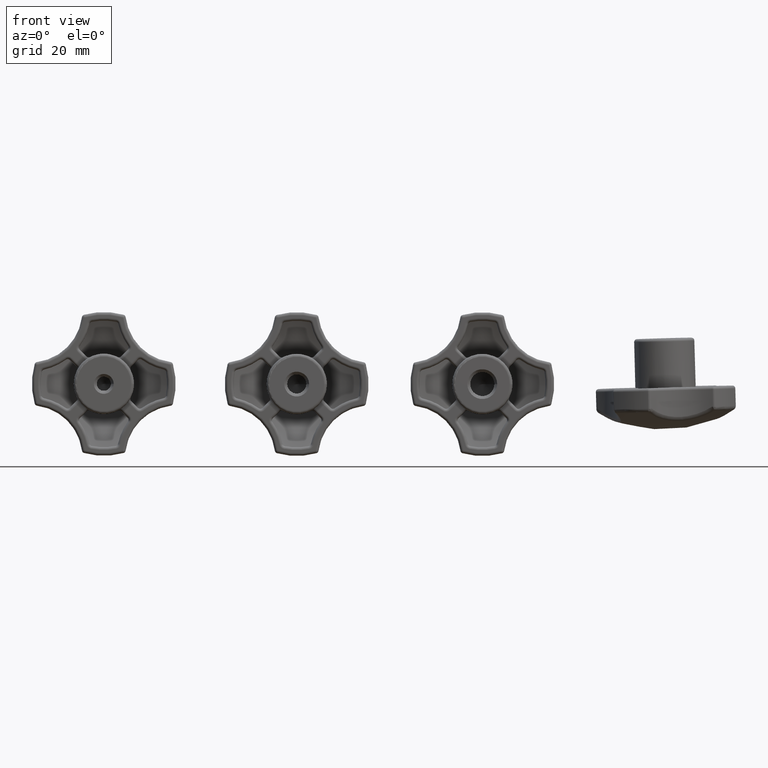
[diagram: clean part render]
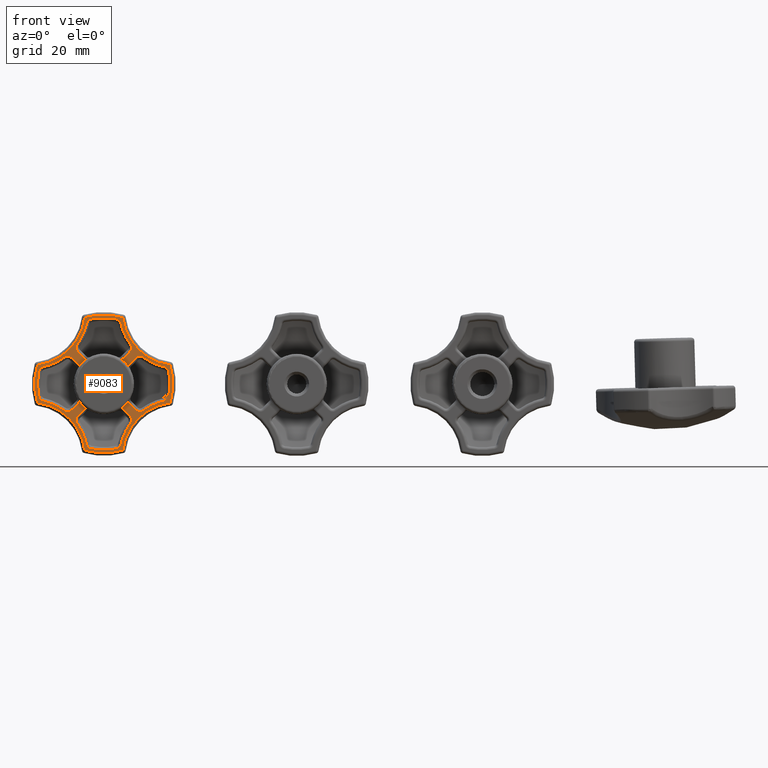
[diagram: same view with one face highlighted and labeled with its STEP entity id]
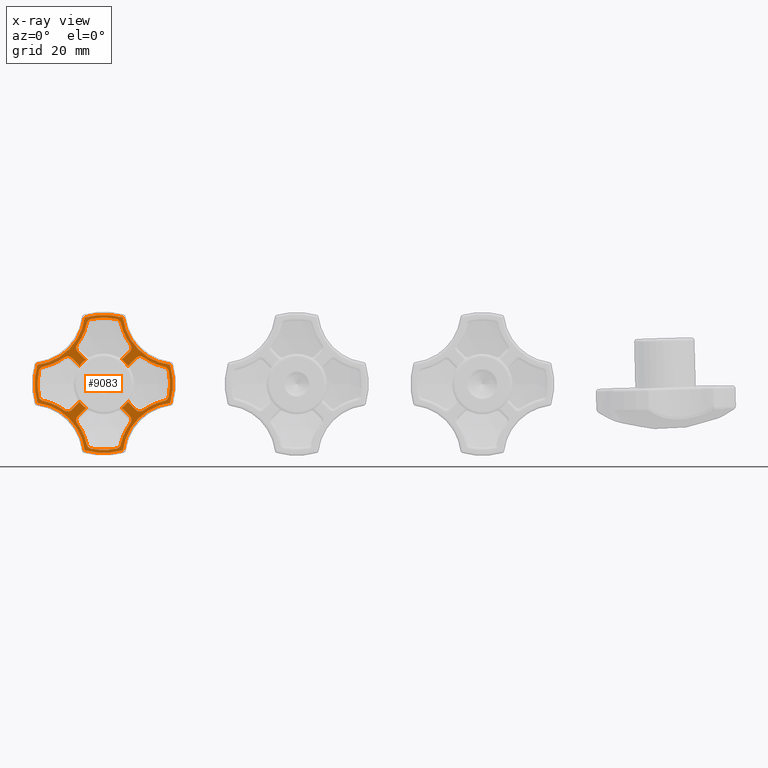
[diagram: x-ray of the same camera — body ghosted, the highlighted face saturated]
A machine part, front view. The second image highlights one B-rep face of the part: STEP entity #9083.
The next image is the same camera in x-ray: the body ghosted, the highlighted face saturated — about 0% of this face is hidden behind the body in this view.
In plain terms, the highlighted planar face has unit normal (0, 1, 0).
Its self-contained STEP definition (entity closure, byte-faithful):
#293=PLANE('',#9791);
#346=FACE_BOUND('',#2115,.T.);
#375=CIRCLE('',#9677,10.5);
#377=CIRCLE('',#9679,10.5);
#379=CIRCLE('',#9681,10.5);
#381=CIRCLE('',#9683,10.5);
#390=CIRCLE('',#9698,2.);
#392=CIRCLE('',#9701,2.);
#396=CIRCLE('',#9706,20.);
#400=CIRCLE('',#9712,2.);
#404=CIRCLE('',#9717,2.);
#407=CIRCLE('',#9722,2.);
#409=CIRCLE('',#9725,20.);
#411=CIRCLE('',#9728,23.);
#415=CIRCLE('',#9736,2.);
#421=CIRCLE('',#9751,2.);
#425=CIRCLE('',#9756,2.);
#428=CIRCLE('',#9761,2.);
#430=CIRCLE('',#9764,20.);
#432=CIRCLE('',#9767,2.);
#438=CIRCLE('',#9774,2.);
#440=CIRCLE('',#9777,20.);
#444=CIRCLE('',#9783,2.);
#445=CIRCLE('',#9787,23.);
#447=CIRCLE('',#9792,24.);
#448=CIRCLE('',#9793,19.);
#449=CIRCLE('',#9794,24.);
#450=CIRCLE('',#9795,19.);
#451=CIRCLE('',#9796,24.);
#452=CIRCLE('',#9797,19.);
#453=CIRCLE('',#9798,24.);
#454=CIRCLE('',#9799,19.);
#455=CIRCLE('',#9800,2.);
#456=CIRCLE('',#9801,2.);
#457=CIRCLE('',#9802,20.);
#458=CIRCLE('',#9803,2.);
#459=CIRCLE('',#9804,23.);
#460=CIRCLE('',#9805,2.);
#461=CIRCLE('',#9806,20.);
#462=CIRCLE('',#9807,2.);
#463=CIRCLE('',#9808,2.);
#464=CIRCLE('',#9809,2.);
#465=CIRCLE('',#9810,2.);
#466=CIRCLE('',#9811,20.);
#467=CIRCLE('',#9812,2.);
#468=CIRCLE('',#9813,23.);
#469=CIRCLE('',#9814,2.);
#470=CIRCLE('',#9815,20.);
#471=CIRCLE('',#9816,2.);
#472=CIRCLE('',#9817,2.);
#1475=FACE_OUTER_BOUND('',#2114,.T.);
#2114=EDGE_LOOP('',(#6231,#6232,#6233,#6234,#6235,#6236,#6237,#6238));
#2115=EDGE_LOOP('',(#6239,#6240,#6241,#6242,#6243,#6244,#6245,#6246,#6247,
#6248,#6249,#6250,#6251,#6252,#6253,#6254,#6255,#6256,#6257,#6258,#6259,
#6260,#6261,#6262,#6263,#6264,#6265,#6266,#6267,#6268,#6269,#6270,#6271,
#6272,#6273,#6274,#6275,#6276,#6277,#6278,#6279,#6280,#6281,#6282,#6283,
#6284,#6285,#6286));
#3075=LINE('',#14445,#3399);
#3081=LINE('',#14498,#3405);
#3087=LINE('',#14587,#3411);
#3089=LINE('',#14626,#3413);
#3098=LINE('',#14717,#3422);
#3099=LINE('',#14733,#3423);
#3100=LINE('',#14738,#3424);
#3101=LINE('',#14754,#3425);
#3399=VECTOR('',#11136,3.32574222092321);
#3405=VECTOR('',#11172,3.32574222092321);
#3411=VECTOR('',#11226,3.32574222092321);
#3413=VECTOR('',#11274,3.3257422209232);
#3422=VECTOR('',#11323,3.3257422209232);
#3423=VECTOR('',#11338,3.3257422209232);
#3424=VECTOR('',#11343,3.32574222092321);
#3425=VECTOR('',#11358,3.32574222092321);
#3713=VERTEX_POINT('',#14213);
#3714=VERTEX_POINT('',#14214);
#3719=VERTEX_POINT('',#14233);
#3720=VERTEX_POINT('',#14244);
#3725=VERTEX_POINT('',#14263);
#3726=VERTEX_POINT('',#14274);
#3731=VERTEX_POINT('',#14293);
#3732=VERTEX_POINT('',#14304);
#3745=VERTEX_POINT('',#14395);
#3746=VERTEX_POINT('',#14397);
#3747=VERTEX_POINT('',#14401);
#3748=VERTEX_POINT('',#14402);
#3755=VERTEX_POINT('',#14432);
#3756=VERTEX_POINT('',#14434);
#3757=VERTEX_POINT('',#14438);
#3761=VERTEX_POINT('',#14450);
#3762=VERTEX_POINT('',#14452);
#3767=VERTEX_POINT('',#14494);
#3775=VERTEX_POINT('',#14574);
#3776=VERTEX_POINT('',#14576);
#3777=VERTEX_POINT('',#14580);
#3781=VERTEX_POINT('',#14592);
#3782=VERTEX_POINT('',#14594);
#3783=VERTEX_POINT('',#14601);
#3784=VERTEX_POINT('',#14602);
#3789=VERTEX_POINT('',#14613);
#3790=VERTEX_POINT('',#14615);
#3791=VERTEX_POINT('',#14622);
#3801=VERTEX_POINT('',#14698);
#3802=VERTEX_POINT('',#14699);
#3803=VERTEX_POINT('',#14701);
#3804=VERTEX_POINT('',#14703);
#3805=VERTEX_POINT('',#14705);
#3806=VERTEX_POINT('',#14707);
#3807=VERTEX_POINT('',#14709);
#3808=VERTEX_POINT('',#14711);
#3809=VERTEX_POINT('',#14714);
#3810=VERTEX_POINT('',#14716);
#3811=VERTEX_POINT('',#14718);
#3812=VERTEX_POINT('',#14720);
#3813=VERTEX_POINT('',#14722);
#3814=VERTEX_POINT('',#14724);
#3815=VERTEX_POINT('',#14726);
#3816=VERTEX_POINT('',#14728);
#3817=VERTEX_POINT('',#14730);
#3818=VERTEX_POINT('',#14732);
#3819=VERTEX_POINT('',#14735);
#3820=VERTEX_POINT('',#14737);
#3821=VERTEX_POINT('',#14739);
#3822=VERTEX_POINT('',#14741);
#3823=VERTEX_POINT('',#14743);
#3824=VERTEX_POINT('',#14745);
#3825=VERTEX_POINT('',#14747);
#3826=VERTEX_POINT('',#14749);
#3827=VERTEX_POINT('',#14751);
#3828=VERTEX_POINT('',#14753);
#4578=EDGE_CURVE('',#3713,#3714,#375,.T.);
#4584=EDGE_CURVE('',#3719,#3720,#377,.T.);
#4590=EDGE_CURVE('',#3725,#3726,#379,.T.);
#4596=EDGE_CURVE('',#3731,#3732,#381,.T.);
#4610=EDGE_CURVE('',#3745,#3746,#390,.T.);
#4612=EDGE_CURVE('',#3747,#3748,#392,.T.);
#4616=EDGE_CURVE('',#3748,#3745,#396,.T.);
#4623=EDGE_CURVE('',#3755,#3756,#400,.T.);
#4627=EDGE_CURVE('',#3732,#3757,#404,.T.);
#4629=EDGE_CURVE('',#3757,#3755,#3075,.T.);
#4632=EDGE_CURVE('',#3761,#3762,#407,.T.);
#4634=EDGE_CURVE('',#3756,#3761,#409,.T.);
#4636=EDGE_CURVE('',#3762,#3747,#411,.T.);
#4646=EDGE_CURVE('',#3746,#3767,#3081,.T.);
#4648=EDGE_CURVE('',#3767,#3713,#415,.T.);
#4663=EDGE_CURVE('',#3775,#3776,#421,.T.);
#4667=EDGE_CURVE('',#3726,#3777,#425,.T.);
#4669=EDGE_CURVE('',#3777,#3775,#3087,.T.);
#4672=EDGE_CURVE('',#3781,#3782,#428,.T.);
#4674=EDGE_CURVE('',#3776,#3781,#430,.T.);
#4676=EDGE_CURVE('',#3783,#3784,#432,.T.);
#4682=EDGE_CURVE('',#3789,#3790,#438,.T.);
#4684=EDGE_CURVE('',#3784,#3789,#440,.T.);
#4688=EDGE_CURVE('',#3790,#3791,#3089,.T.);
#4690=EDGE_CURVE('',#3791,#3731,#444,.T.);
#4697=EDGE_CURVE('',#3782,#3783,#445,.T.);
#4705=EDGE_CURVE('',#3801,#3802,#447,.T.);
#4706=EDGE_CURVE('',#3803,#3801,#448,.T.);
#4707=EDGE_CURVE('',#3804,#3803,#449,.T.);
#4708=EDGE_CURVE('',#3805,#3804,#450,.T.);
#4709=EDGE_CURVE('',#3806,#3805,#451,.T.);
#4710=EDGE_CURVE('',#3807,#3806,#452,.T.);
#4711=EDGE_CURVE('',#3808,#3807,#453,.T.);
#4712=EDGE_CURVE('',#3802,#3808,#454,.T.);
#4713=EDGE_CURVE('',#3809,#3725,#455,.T.);
#4714=EDGE_CURVE('',#3810,#3809,#3098,.T.);
#4715=EDGE_CURVE('',#3811,#3810,#456,.T.);
#4716=EDGE_CURVE('',#3812,#3811,#457,.T.);
#4717=EDGE_CURVE('',#3813,#3812,#458,.T.);
#4718=EDGE_CURVE('',#3814,#3813,#459,.T.);
#4719=EDGE_CURVE('',#3815,#3814,#460,.T.);
#4720=EDGE_CURVE('',#3816,#3815,#461,.T.);
#4721=EDGE_CURVE('',#3817,#3816,#462,.T.);
#4722=EDGE_CURVE('',#3818,#3817,#3099,.T.);
#4723=EDGE_CURVE('',#3720,#3818,#463,.T.);
#4724=EDGE_CURVE('',#3819,#3719,#464,.T.);
#4725=EDGE_CURVE('',#3820,#3819,#3100,.T.);
#4726=EDGE_CURVE('',#3821,#3820,#465,.T.);
#4727=EDGE_CURVE('',#3822,#3821,#466,.T.);
#4728=EDGE_CURVE('',#3823,#3822,#467,.T.);
#4729=EDGE_CURVE('',#3824,#3823,#468,.T.);
#4730=EDGE_CURVE('',#3825,#3824,#469,.T.);
#4731=EDGE_CURVE('',#3826,#3825,#470,.T.);
#4732=EDGE_CURVE('',#3827,#3826,#471,.T.);
#4733=EDGE_CURVE('',#3828,#3827,#3101,.T.);
#4734=EDGE_CURVE('',#3714,#3828,#472,.T.);
#6231=ORIENTED_EDGE('',*,*,#4705,.F.);
#6232=ORIENTED_EDGE('',*,*,#4706,.F.);
#6233=ORIENTED_EDGE('',*,*,#4707,.F.);
#6234=ORIENTED_EDGE('',*,*,#4708,.F.);
#6235=ORIENTED_EDGE('',*,*,#4709,.F.);
#6236=ORIENTED_EDGE('',*,*,#4710,.F.);
#6237=ORIENTED_EDGE('',*,*,#4711,.F.);
#6238=ORIENTED_EDGE('',*,*,#4712,.F.);
#6239=ORIENTED_EDGE('',*,*,#4627,.F.);
#6240=ORIENTED_EDGE('',*,*,#4596,.F.);
#6241=ORIENTED_EDGE('',*,*,#4690,.F.);
#6242=ORIENTED_EDGE('',*,*,#4688,.F.);
#6243=ORIENTED_EDGE('',*,*,#4682,.F.);
#6244=ORIENTED_EDGE('',*,*,#4684,.F.);
#6245=ORIENTED_EDGE('',*,*,#4676,.F.);
#6246=ORIENTED_EDGE('',*,*,#4697,.F.);
#6247=ORIENTED_EDGE('',*,*,#4672,.F.);
#6248=ORIENTED_EDGE('',*,*,#4674,.F.);
#6249=ORIENTED_EDGE('',*,*,#4663,.F.);
#6250=ORIENTED_EDGE('',*,*,#4669,.F.);
#6251=ORIENTED_EDGE('',*,*,#4667,.F.);
#6252=ORIENTED_EDGE('',*,*,#4590,.F.);
#6253=ORIENTED_EDGE('',*,*,#4713,.F.);
#6254=ORIENTED_EDGE('',*,*,#4714,.F.);
#6255=ORIENTED_EDGE('',*,*,#4715,.F.);
#6256=ORIENTED_EDGE('',*,*,#4716,.F.);
#6257=ORIENTED_EDGE('',*,*,#4717,.F.);
#6258=ORIENTED_EDGE('',*,*,#4718,.F.);
#6259=ORIENTED_EDGE('',*,*,#4719,.F.);
#6260=ORIENTED_EDGE('',*,*,#4720,.F.);
#6261=ORIENTED_EDGE('',*,*,#4721,.F.);
#6262=ORIENTED_EDGE('',*,*,#4722,.F.);
#6263=ORIENTED_EDGE('',*,*,#4723,.F.);
#6264=ORIENTED_EDGE('',*,*,#4584,.F.);
#6265=ORIENTED_EDGE('',*,*,#4724,.F.);
#6266=ORIENTED_EDGE('',*,*,#4725,.F.);
#6267=ORIENTED_EDGE('',*,*,#4726,.F.);
#6268=ORIENTED_EDGE('',*,*,#4727,.F.);
#6269=ORIENTED_EDGE('',*,*,#4728,.F.);
#6270=ORIENTED_EDGE('',*,*,#4729,.F.);
#6271=ORIENTED_EDGE('',*,*,#4730,.F.);
#6272=ORIENTED_EDGE('',*,*,#4731,.F.);
#6273=ORIENTED_EDGE('',*,*,#4732,.F.);
#6274=ORIENTED_EDGE('',*,*,#4733,.F.);
#6275=ORIENTED_EDGE('',*,*,#4734,.F.);
#6276=ORIENTED_EDGE('',*,*,#4578,.F.);
#6277=ORIENTED_EDGE('',*,*,#4648,.F.);
#6278=ORIENTED_EDGE('',*,*,#4646,.F.);
#6279=ORIENTED_EDGE('',*,*,#4610,.F.);
#6280=ORIENTED_EDGE('',*,*,#4616,.F.);
#6281=ORIENTED_EDGE('',*,*,#4612,.F.);
#6282=ORIENTED_EDGE('',*,*,#4636,.F.);
#6283=ORIENTED_EDGE('',*,*,#4632,.F.);
#6284=ORIENTED_EDGE('',*,*,#4634,.F.);
#6285=ORIENTED_EDGE('',*,*,#4623,.F.);
#6286=ORIENTED_EDGE('',*,*,#4629,.F.);
#9083=ADVANCED_FACE('',(#1475,#346),#293,.F.);
#9677=AXIS2_PLACEMENT_3D('',#14215,#11041,#11042);
#9679=AXIS2_PLACEMENT_3D('',#14245,#11047,#11048);
#9681=AXIS2_PLACEMENT_3D('',#14275,#11053,#11054);
#9683=AXIS2_PLACEMENT_3D('',#14305,#11059,#11060);
#9698=AXIS2_PLACEMENT_3D('',#14398,#11091,#11092);
#9701=AXIS2_PLACEMENT_3D('',#14403,#11097,#11098);
#9706=AXIS2_PLACEMENT_3D('',#14410,#11107,#11108);
#9712=AXIS2_PLACEMENT_3D('',#14435,#11121,#11122);
#9717=AXIS2_PLACEMENT_3D('',#14442,#11131,#11132);
#9722=AXIS2_PLACEMENT_3D('',#14453,#11143,#11144);
#9725=AXIS2_PLACEMENT_3D('',#14456,#11149,#11150);
#9728=AXIS2_PLACEMENT_3D('',#14459,#11155,#11156);
#9736=AXIS2_PLACEMENT_3D('',#14501,#11177,#11178);
#9751=AXIS2_PLACEMENT_3D('',#14577,#11211,#11212);
#9756=AXIS2_PLACEMENT_3D('',#14584,#11221,#11222);
#9761=AXIS2_PLACEMENT_3D('',#14595,#11233,#11234);
#9764=AXIS2_PLACEMENT_3D('',#14598,#11239,#11240);
#9767=AXIS2_PLACEMENT_3D('',#14603,#11245,#11246);
#9774=AXIS2_PLACEMENT_3D('',#14616,#11259,#11260);
#9777=AXIS2_PLACEMENT_3D('',#14619,#11265,#11266);
#9783=AXIS2_PLACEMENT_3D('',#14629,#11279,#11280);
#9787=AXIS2_PLACEMENT_3D('',#14663,#11291,#11292);
#9791=AXIS2_PLACEMENT_3D('',#14697,#11303,#11304);
#9792=AXIS2_PLACEMENT_3D('',#14700,#11305,#11306);
#9793=AXIS2_PLACEMENT_3D('',#14702,#11307,#11308);
#9794=AXIS2_PLACEMENT_3D('',#14704,#11309,#11310);
#9795=AXIS2_PLACEMENT_3D('',#14706,#11311,#11312);
#9796=AXIS2_PLACEMENT_3D('',#14708,#11313,#11314);
#9797=AXIS2_PLACEMENT_3D('',#14710,#11315,#11316);
#9798=AXIS2_PLACEMENT_3D('',#14712,#11317,#11318);
#9799=AXIS2_PLACEMENT_3D('',#14713,#11319,#11320);
#9800=AXIS2_PLACEMENT_3D('',#14715,#11321,#11322);
#9801=AXIS2_PLACEMENT_3D('',#14719,#11324,#11325);
#9802=AXIS2_PLACEMENT_3D('',#14721,#11326,#11327);
#9803=AXIS2_PLACEMENT_3D('',#14723,#11328,#11329);
#9804=AXIS2_PLACEMENT_3D('',#14725,#11330,#11331);
#9805=AXIS2_PLACEMENT_3D('',#14727,#11332,#11333);
#9806=AXIS2_PLACEMENT_3D('',#14729,#11334,#11335);
#9807=AXIS2_PLACEMENT_3D('',#14731,#11336,#11337);
#9808=AXIS2_PLACEMENT_3D('',#14734,#11339,#11340);
#9809=AXIS2_PLACEMENT_3D('',#14736,#11341,#11342);
#9810=AXIS2_PLACEMENT_3D('',#14740,#11344,#11345);
#9811=AXIS2_PLACEMENT_3D('',#14742,#11346,#11347);
#9812=AXIS2_PLACEMENT_3D('',#14744,#11348,#11349);
#9813=AXIS2_PLACEMENT_3D('',#14746,#11350,#11351);
#9814=AXIS2_PLACEMENT_3D('',#14748,#11352,#11353);
#9815=AXIS2_PLACEMENT_3D('',#14750,#11354,#11355);
#9816=AXIS2_PLACEMENT_3D('',#14752,#11356,#11357);
#9817=AXIS2_PLACEMENT_3D('',#14755,#11359,#11360);
#11041=DIRECTION('center_axis',(0.,-1.,0.));
#11042=DIRECTION('ref_axis',(-1.,0.,-2.94936186321761E-16));
#11047=DIRECTION('center_axis',(0.,-1.,0.));
#11048=DIRECTION('ref_axis',(-1.,0.,-2.94936186321761E-16));
#11053=DIRECTION('center_axis',(0.,-1.,0.));
#11054=DIRECTION('ref_axis',(-1.,0.,-2.94936186321761E-16));
#11059=DIRECTION('center_axis',(0.,-1.,0.));
#11060=DIRECTION('ref_axis',(-1.,0.,-2.94936186321761E-16));
#11091=DIRECTION('center_axis',(0.,-1.,0.));
#11092=DIRECTION('ref_axis',(-0.996810899238319,0.,-0.0797999446095904));
#11097=DIRECTION('center_axis',(0.,-1.,0.));
#11098=DIRECTION('ref_axis',(-0.696280447289844,0.,0.717769836871023));
#11107=DIRECTION('center_axis',(0.,1.,0.));
#11108=DIRECTION('ref_axis',(0.909495073179469,0.,-0.415714700079601));
#11121=DIRECTION('center_axis',(0.,-1.,0.));
#11122=DIRECTION('ref_axis',(0.996810899238319,0.,-0.0797999446095875));
#11131=DIRECTION('center_axis',(0.,-1.,0.));
#11132=DIRECTION('ref_axis',(0.154011412606012,0.,-0.98806906883431));
#11136=DIRECTION('',(0.707106781186547,0.,0.707106781186548));
#11143=DIRECTION('center_axis',(0.,-1.,0.));
#11144=DIRECTION('ref_axis',(0.696280447289844,0.,0.717769836871023));
#11149=DIRECTION('center_axis',(0.,1.,0.));
#11150=DIRECTION('ref_axis',(-0.909495073179468,0.,-0.415714700079602));
#11155=DIRECTION('center_axis',(0.,-1.,0.));
#11156=DIRECTION('ref_axis',(-5.0532154980743E-16,0.,1.));
#11172=DIRECTION('',(0.707106781186548,0.,-0.707106781186547));
#11177=DIRECTION('center_axis',(0.,-1.,0.));
#11178=DIRECTION('ref_axis',(-0.154011412606011,0.,-0.98806906883431));
#11211=DIRECTION('center_axis',(0.,-1.,0.));
#11212=DIRECTION('ref_axis',(-0.0797999446095904,0.,-0.996810899238319));
#11221=DIRECTION('center_axis',(0.,-1.,0.));
#11222=DIRECTION('ref_axis',(-0.98806906883431,0.,-0.154011412606012));
#11226=DIRECTION('',(0.707106781186548,0.,-0.707106781186547));
#11233=DIRECTION('center_axis',(0.,-1.,0.));
#11234=DIRECTION('ref_axis',(0.717769836871023,0.,-0.696280447289844));
#11239=DIRECTION('center_axis',(0.,1.,0.));
#11240=DIRECTION('ref_axis',(-0.415714700079602,0.,0.909495073179468));
#11245=DIRECTION('center_axis',(0.,-1.,0.));
#11246=DIRECTION('ref_axis',(0.717769836871023,0.,0.696280447289844));
#11259=DIRECTION('center_axis',(0.,-1.,0.));
#11260=DIRECTION('ref_axis',(-0.0797999446095933,0.,0.996810899238319));
#11265=DIRECTION('center_axis',(0.,1.,0.));
#11266=DIRECTION('ref_axis',(-0.415714700079601,0.,-0.909495073179469));
#11274=DIRECTION('',(-0.707106781186547,0.,-0.707106781186548));
#11279=DIRECTION('center_axis',(0.,-1.,0.));
#11280=DIRECTION('ref_axis',(-0.98806906883431,0.,0.154011412606011));
#11291=DIRECTION('center_axis',(0.,-1.,0.));
#11292=DIRECTION('ref_axis',(1.,0.,1.22464679914735E-16));
#11303=DIRECTION('center_axis',(0.,1.,0.));
#11304=DIRECTION('ref_axis',(0.,0.,1.));
#11305=DIRECTION('center_axis',(0.,1.,0.));
#11306=DIRECTION('ref_axis',(1.,0.,2.77555756156289E-16));
#11307=DIRECTION('center_axis',(0.,-1.,0.));
#11308=DIRECTION('ref_axis',(-0.707106781186547,0.,-0.707106781186548));
#11309=DIRECTION('center_axis',(0.,1.,0.));
#11310=DIRECTION('ref_axis',(-3.82856869892695E-16,0.,1.));
#11311=DIRECTION('center_axis',(0.,-1.,0.));
#11312=DIRECTION('ref_axis',(0.707106781186548,0.,-0.707106781186547));
#11313=DIRECTION('center_axis',(0.,1.,0.));
#11314=DIRECTION('ref_axis',(-1.,0.,-3.21624529935327E-16));
#11315=DIRECTION('center_axis',(0.,-1.,0.));
#11316=DIRECTION('ref_axis',(0.707106781186548,0.,0.707106781186548));
#11317=DIRECTION('center_axis',(0.,1.,0.));
#11318=DIRECTION('ref_axis',(5.0532154980743E-16,0.,-1.));
#11319=DIRECTION('center_axis',(0.,-1.,0.));
#11320=DIRECTION('ref_axis',(-0.707106781186548,0.,0.707106781186547));
#11321=DIRECTION('center_axis',(0.,-1.,0.));
#11322=DIRECTION('ref_axis',(0.154011412606011,0.,0.98806906883431));
#11323=DIRECTION('',(-0.707106781186548,0.,0.707106781186547));
#11324=DIRECTION('center_axis',(0.,-1.,0.));
#11325=DIRECTION('ref_axis',(0.996810899238319,0.,0.0797999446095919));
#11326=DIRECTION('center_axis',(0.,1.,0.));
#11327=DIRECTION('ref_axis',(-0.909495073179469,0.,0.415714700079601));
#11328=DIRECTION('center_axis',(0.,-1.,0.));
#11329=DIRECTION('ref_axis',(0.696280447289844,0.,-0.717769836871023));
#11330=DIRECTION('center_axis',(0.,-1.,0.));
#11331=DIRECTION('ref_axis',(3.82856869892695E-16,0.,-1.));
#11332=DIRECTION('center_axis',(0.,-1.,0.));
#11333=DIRECTION('ref_axis',(-0.696280447289844,0.,-0.717769836871023));
#11334=DIRECTION('center_axis',(0.,1.,0.));
#11335=DIRECTION('ref_axis',(0.909495073179468,0.,0.415714700079602));
#11336=DIRECTION('center_axis',(0.,-1.,0.));
#11337=DIRECTION('ref_axis',(-0.996810899238319,0.,0.0797999446095903));
#11338=DIRECTION('',(-0.707106781186547,0.,-0.707106781186548));
#11339=DIRECTION('center_axis',(0.,-1.,0.));
#11340=DIRECTION('ref_axis',(-0.154011412606012,0.,0.98806906883431));
#11341=DIRECTION('center_axis',(0.,-1.,0.));
#11342=DIRECTION('ref_axis',(0.98806906883431,0.,-0.154011412606011));
#11343=DIRECTION('',(0.707106781186547,0.,0.707106781186548));
#11344=DIRECTION('center_axis',(0.,-1.,0.));
#11345=DIRECTION('ref_axis',(0.0797999446095919,0.,-0.996810899238319));
#11346=DIRECTION('center_axis',(0.,1.,0.));
#11347=DIRECTION('ref_axis',(0.415714700079602,0.,0.909495073179469));
#11348=DIRECTION('center_axis',(0.,-1.,0.));
#11349=DIRECTION('ref_axis',(-0.717769836871023,0.,-0.696280447289844));
#11350=DIRECTION('center_axis',(0.,-1.,0.));
#11351=DIRECTION('ref_axis',(-1.,0.,-3.7470027081099E-16));
#11352=DIRECTION('center_axis',(0.,-1.,0.));
#11353=DIRECTION('ref_axis',(-0.717769836871023,0.,0.696280447289844));
#11354=DIRECTION('center_axis',(0.,1.,0.));
#11355=DIRECTION('ref_axis',(0.415714700079602,0.,-0.909495073179468));
#11356=DIRECTION('center_axis',(0.,-1.,0.));
#11357=DIRECTION('ref_axis',(0.0797999446095903,0.,0.996810899238319));
#11358=DIRECTION('',(-0.707106781186548,0.,0.707106781186547));
#11359=DIRECTION('center_axis',(0.,-1.,0.));
#11360=DIRECTION('ref_axis',(0.98806906883431,0.,0.154011412606012));
#14213=CARTESIAN_POINT('',(-6.21931680428899,-2.22044604925031E-15,8.459911257684));
#14214=CARTESIAN_POINT('',(-8.45991125768401,-2.22044604925031E-15,6.21931680428899));
#14215=CARTESIAN_POINT('Origin',(0.,-2.22044604925031E-15,0.));
#14233=CARTESIAN_POINT('',(-8.459911257684,-2.22044604925031E-15,-6.21931680428899));
#14244=CARTESIAN_POINT('',(-6.21931680428898,-2.22044604925031E-15,-8.45991125768401));
#14245=CARTESIAN_POINT('Origin',(0.,-2.22044604925031E-15,0.));
#14263=CARTESIAN_POINT('',(6.21931680428899,-2.22044604925031E-15,-8.459911257684));
#14274=CARTESIAN_POINT('',(8.45991125768401,-2.22044604925031E-15,-6.21931680428898));
#14275=CARTESIAN_POINT('Origin',(0.,-2.22044604925031E-15,0.));
#14293=CARTESIAN_POINT('',(8.459911257684,-2.22044604925031E-15,6.21931680428899));
#14304=CARTESIAN_POINT('',(6.21931680428899,-2.22044604925031E-15,8.45991125768401));
#14305=CARTESIAN_POINT('Origin',(0.,-2.22044604925031E-15,0.));
#14395=CARTESIAN_POINT('',(-9.24393840675155,-3.05311331771918E-15,13.7437088324841));
#14397=CARTESIAN_POINT('',(-9.03696139752824,-3.05311331771918E-15,11.1582817410879));
#14398=CARTESIAN_POINT('Origin',(-7.62274783515513,-3.05311331771918E-15,
12.572495303461));
#14401=CARTESIAN_POINT('',(-4.37513211101171,-3.05311331771918E-15,22.5800402792199));
#14402=CARTESIAN_POINT('',(-5.9457002297823,-3.05311331771918E-15,21.0564935709828));
#14403=CARTESIAN_POINT('Origin',(-3.99468584048896,-3.05311331771918E-15,
20.6165585158095));
#14410=CARTESIAN_POINT('Origin',(-25.4558441227157,-3.05311331771918E-15,
25.4558441227157));
#14432=CARTESIAN_POINT('',(9.03696139752822,-3.05311331771918E-15,11.1582817410879));
#14434=CARTESIAN_POINT('',(9.24393840675154,-3.05311331771918E-15,13.7437088324841));
#14435=CARTESIAN_POINT('Origin',(7.62274783515512,-3.05311331771918E-15,
12.572495303461));
#14438=CARTESIAN_POINT('',(6.68530652063501,-3.05311331771918E-15,8.80662686419466));
#14442=CARTESIAN_POINT('Origin',(5.27109295826191,-3.05311331771918E-15,
10.2208404265678));
#14445=CARTESIAN_POINT('',(2.10413882300914,-3.05311331771918E-15,4.22545916656879));
#14450=CARTESIAN_POINT('',(5.94570022978228,-3.05311331771918E-15,21.0564935709828));
#14452=CARTESIAN_POINT('',(4.3751321110117,-3.05311331771918E-15,22.5800402792199));
#14453=CARTESIAN_POINT('Origin',(3.99468584048894,-3.05311331771918E-15,
20.6165585158095));
#14456=CARTESIAN_POINT('Origin',(25.4558441227157,-3.05311331771918E-15,
25.4558441227157));
#14459=CARTESIAN_POINT('Origin',(0.,-3.05311331771918E-15,0.));
#14494=CARTESIAN_POINT('',(-6.68530652063502,-3.05311331771918E-15,8.80662686419465));
#14498=CARTESIAN_POINT('',(-0.233084831879719,-3.05311331771918E-15,2.35440517543936));
#14501=CARTESIAN_POINT('Origin',(-5.27109295826192,-3.05311331771918E-15,
10.2208404265677));
#14574=CARTESIAN_POINT('',(11.1582817410879,-3.05311331771918E-15,-9.03696139752821));
#14576=CARTESIAN_POINT('',(13.7437088324841,-3.05311331771918E-15,-9.24393840675153));
#14577=CARTESIAN_POINT('Origin',(12.572495303461,-3.05311331771918E-15,
-7.62274783515512));
#14580=CARTESIAN_POINT('',(8.80662686419466,-3.05311331771918E-15,-6.68530652063501));
#14584=CARTESIAN_POINT('Origin',(10.2208404265678,-3.05311331771918E-15,
-5.27109295826191));
#14587=CARTESIAN_POINT('',(8.68400316501729,-3.05311331771918E-15,-6.56268282145764));
#14592=CARTESIAN_POINT('',(21.0564935709828,-3.05311331771918E-15,-5.94570022978228));
#14594=CARTESIAN_POINT('',(22.5800402792199,-3.05311331771918E-15,-4.3751321110117));
#14595=CARTESIAN_POINT('Origin',(20.6165585158095,-3.05311331771918E-15,
-3.99468584048894));
#14598=CARTESIAN_POINT('Origin',(25.4558441227157,-3.05311331771918E-15,
-25.4558441227157));
#14601=CARTESIAN_POINT('',(22.5800402792199,-3.05311331771918E-15,4.37513211101171));
#14602=CARTESIAN_POINT('',(21.0564935709828,-3.05311331771918E-15,5.9457002297823));
#14603=CARTESIAN_POINT('Origin',(20.6165585158095,-3.05311331771918E-15,
3.99468584048895));
#14613=CARTESIAN_POINT('',(13.7437088324841,-3.05311331771918E-15,9.24393840675155));
#14615=CARTESIAN_POINT('',(11.1582817410879,-3.05311331771918E-15,9.03696139752823));
#14616=CARTESIAN_POINT('Origin',(12.572495303461,-3.05311331771918E-15,
7.62274783515513));
#14619=CARTESIAN_POINT('Origin',(25.4558441227157,-3.05311331771918E-15,
25.4558441227157));
#14622=CARTESIAN_POINT('',(8.80662686419465,-3.05311331771918E-15,6.68530652063502));
#14626=CARTESIAN_POINT('',(6.81294917388785,-3.05311331771918E-15,4.69162883032822));
#14629=CARTESIAN_POINT('Origin',(10.2208404265677,-3.05311331771918E-15,
5.27109295826192));
#14663=CARTESIAN_POINT('Origin',(0.,-3.05311331771918E-15,0.));
#14697=CARTESIAN_POINT('Origin',(8.917087996897,-3.06161699786838E-15,-8.91708799689699));
#14698=CARTESIAN_POINT('',(23.0729851175297,-3.05311331771918E-15,6.60585783727232));
#14699=CARTESIAN_POINT('',(23.0729851175297,-3.05311331771918E-15,-6.60585783727231));
#14700=CARTESIAN_POINT('Origin',(0.,-3.05311331771918E-15,0.));
#14701=CARTESIAN_POINT('',(6.60585783727231,-3.05311331771918E-15,23.0729851175297));
#14702=CARTESIAN_POINT('Origin',(25.4558441227157,-3.05311331771918E-15,
25.4558441227157));
#14703=CARTESIAN_POINT('',(-6.60585783727233,-3.05311331771918E-15,23.0729851175297));
#14704=CARTESIAN_POINT('Origin',(0.,-3.05311331771918E-15,0.));
#14705=CARTESIAN_POINT('',(-23.0729851175297,-3.05311331771918E-15,6.60585783727231));
#14706=CARTESIAN_POINT('Origin',(-25.4558441227157,-3.05311331771918E-15,
25.4558441227157));
#14707=CARTESIAN_POINT('',(-23.0729851175297,-3.05311331771918E-15,-6.60585783727233));
#14708=CARTESIAN_POINT('Origin',(0.,-3.05311331771918E-15,0.));
#14709=CARTESIAN_POINT('',(-6.60585783727231,-3.05311331771918E-15,-23.0729851175297));
#14710=CARTESIAN_POINT('Origin',(-25.4558441227157,-3.05311331771918E-15,
-25.4558441227157));
#14711=CARTESIAN_POINT('',(6.60585783727232,-3.05311331771918E-15,-23.0729851175297));
#14712=CARTESIAN_POINT('Origin',(0.,-3.05311331771918E-15,0.));
#14713=CARTESIAN_POINT('Origin',(25.4558441227157,-3.05311331771918E-15,
-25.4558441227157));
#14714=CARTESIAN_POINT('',(6.68530652063502,-3.05311331771918E-15,-8.80662686419465));
#14715=CARTESIAN_POINT('Origin',(5.27109295826192,-3.05311331771918E-15,
-10.2208404265677));
#14716=CARTESIAN_POINT('',(9.03696139752823,-3.05311331771918E-15,-11.1582817410879));
#14717=CARTESIAN_POINT('',(9.15017282877672,-3.05311331771918E-15,-11.2714931723364));
#14718=CARTESIAN_POINT('',(9.24393840675155,-3.05311331771918E-15,-13.7437088324841));
#14719=CARTESIAN_POINT('Origin',(7.62274783515513,-3.05311331771918E-15,
-12.572495303461));
#14720=CARTESIAN_POINT('',(5.9457002297823,-3.05311331771918E-15,-21.0564935709828));
#14721=CARTESIAN_POINT('Origin',(25.4558441227157,-3.05311331771918E-15,
-25.4558441227157));
#14722=CARTESIAN_POINT('',(4.37513211101171,-3.05311331771918E-15,-22.5800402792199));
#14723=CARTESIAN_POINT('Origin',(3.99468584048895,-3.05311331771918E-15,
-20.6165585158095));
#14724=CARTESIAN_POINT('',(-4.37513211101169,-3.05311331771918E-15,-22.5800402792199));
#14725=CARTESIAN_POINT('Origin',(0.,-3.05311331771918E-15,0.));
#14726=CARTESIAN_POINT('',(-5.94570022978228,-3.05311331771918E-15,-21.0564935709828));
#14727=CARTESIAN_POINT('Origin',(-3.99468584048894,-3.05311331771918E-15,
-20.6165585158095));
#14728=CARTESIAN_POINT('',(-9.24393840675154,-3.05311331771918E-15,-13.7437088324841));
#14729=CARTESIAN_POINT('Origin',(-25.4558441227157,-3.05311331771918E-15,
-25.4558441227157));
#14730=CARTESIAN_POINT('',(-9.03696139752821,-3.05311331771918E-15,-11.1582817410879));
#14731=CARTESIAN_POINT('Origin',(-7.62274783515512,-3.05311331771918E-15,
-12.572495303461));
#14732=CARTESIAN_POINT('',(-6.68530652063501,-3.05311331771918E-15,-8.80662686419466));
#14733=CARTESIAN_POINT('',(-2.10413882300914,-3.05311331771918E-15,-4.22545916656879));
#14734=CARTESIAN_POINT('Origin',(-5.27109295826191,-3.05311331771918E-15,
-10.2208404265678));
#14735=CARTESIAN_POINT('',(-8.80662686419465,-3.05311331771918E-15,-6.68530652063502));
#14736=CARTESIAN_POINT('Origin',(-10.2208404265677,-3.05311331771918E-15,
-5.27109295826192));
#14737=CARTESIAN_POINT('',(-11.1582817410879,-3.05311331771918E-15,-9.03696139752823));
#14738=CARTESIAN_POINT('',(-6.81294917388785,-3.05311331771918E-15,-4.69162883032822));
#14739=CARTESIAN_POINT('',(-13.7437088324841,-3.05311331771918E-15,-9.24393840675155));
#14740=CARTESIAN_POINT('Origin',(-12.572495303461,-3.05311331771918E-15,
-7.62274783515513));
#14741=CARTESIAN_POINT('',(-21.0564935709828,-3.05311331771918E-15,-5.9457002297823));
#14742=CARTESIAN_POINT('Origin',(-25.4558441227157,-3.05311331771918E-15,
-25.4558441227157));
#14743=CARTESIAN_POINT('',(-22.5800402792199,-3.05311331771918E-15,-4.37513211101171));
#14744=CARTESIAN_POINT('Origin',(-20.6165585158095,-3.05311331771918E-15,
-3.99468584048896));
#14745=CARTESIAN_POINT('',(-22.5800402792199,-3.05311331771918E-15,4.37513211101169));
#14746=CARTESIAN_POINT('Origin',(0.,-3.05311331771918E-15,0.));
#14747=CARTESIAN_POINT('',(-21.0564935709828,-3.05311331771918E-15,5.94570022978228));
#14748=CARTESIAN_POINT('Origin',(-20.6165585158095,-3.05311331771918E-15,
3.99468584048894));
#14749=CARTESIAN_POINT('',(-13.7437088324841,-3.05311331771918E-15,9.24393840675153));
#14750=CARTESIAN_POINT('Origin',(-25.4558441227157,-3.05311331771918E-15,
25.4558441227157));
#14751=CARTESIAN_POINT('',(-11.1582817410879,-3.05311331771918E-15,9.03696139752821));
#14752=CARTESIAN_POINT('Origin',(-12.572495303461,-3.05311331771918E-15,
7.62274783515511));
#14753=CARTESIAN_POINT('',(-8.80662686419466,-3.05311331771918E-15,6.68530652063501));
#14754=CARTESIAN_POINT('',(0.233084831879717,-3.05311331771918E-15,-2.35440517543936));
#14755=CARTESIAN_POINT('Origin',(-10.2208404265678,-3.05311331771918E-15,
5.27109295826191));